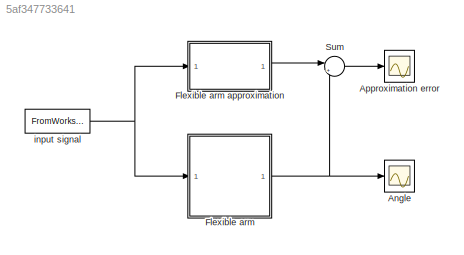
MODEL slx_5af347733641
KIND model
CONFIG AbsTol = auto
CONFIG EnableMultiTasking = off
CONFIG FixedStep = Ts
CONFIG InitFcn = if(~exist('bsol'))\n   init\nend
CONFIG MaxStep = auto
CONFIG MinStep = auto
CONFIG RelTol = 1e-3
CONFIG SampleTimeConstraint = Unconstrained
CONFIG Solver = FixedStepAuto
CONFIG SolverName = FixedStepAuto
CONFIG StartTime = 0.0
CONFIG StopFcn = evaluate
CONFIG StopTime = Tf
BLOCK [Scope] Angle
  NumInputPorts = 1
  Ports = [1]
  ScopeSpecificationString = Simulink.scopes.TimeScopeBlockCfg('CurrentConfiguration', extmgr.ConfigurationSet(extmgr.Configuration('Core','General UI',true),extmgr.Configuration('Core','Source UI',true),extmgr.Configuration('Sources','WiredSimulink',true,'DataLoggingSaveFormat','StructureWithTime','DataLoggingDecimation','1','DataLoggingDecimateData',true,'DataLogging',true,'DataLoggingVariableName','theta_data'),extmgr.Conf...<+1541ch>
BLOCK [Scope] Approximation error
  NumInputPorts = 1
  Ports = [1]
  ScopeSpecificationString = Simulink.scopes.TimeScopeBlockCfg('CurrentConfiguration', extmgr.ConfigurationSet(extmgr.Configuration('Core','General UI',true),extmgr.Configuration('Core','Source UI',true),extmgr.Configuration('Sources','WiredSimulink',true,'DataLoggingSaveFormat','StructureWithTime','DataLoggingDecimation','1','DataLoggingDecimateData',true,'DataLogging',true,'DataLoggingVariableName','error_data'),extmgr.Conf...<+1554ch>
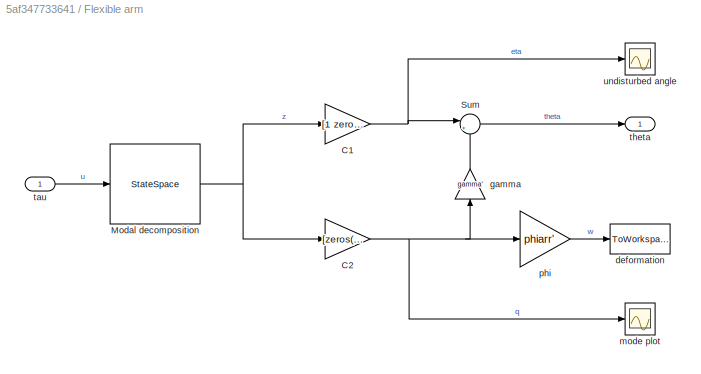
BLOCK [SubSystem] Flexible arm
  Ports = [1, 1]
  RequestExecContextInheritance = off
  Variant = off
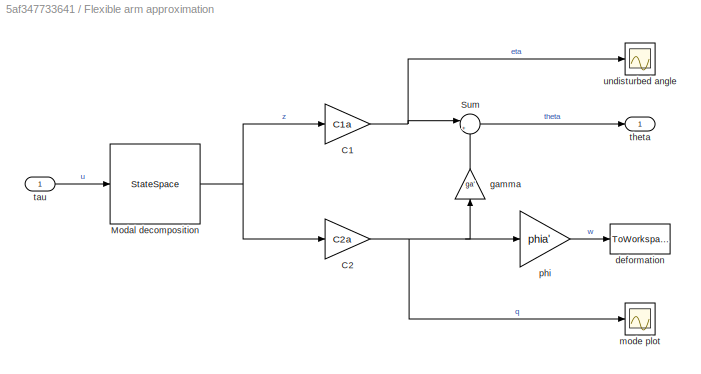
BLOCK [SubSystem] Flexible arm approximation
  Ports = [1, 1]
  RequestExecContextInheritance = off
  Variant = off
BLOCK [Gain] Flexible arm approximation/C1
  Gain = C1a
  Multiplication = Matrix(K*u) (u vector)
  OutDataTypeStr = Inherit: Inherit via internal rule
  ParamDataTypeStr = Inherit: Inherit via internal rule
  SaturateOnIntegerOverflow = off
BLOCK [Gain] Flexible arm approximation/C2
  Gain = C2a
  Multiplication = Matrix(K*u) (u vector)
  OutDataTypeStr = Inherit: Inherit via internal rule
  ParamDataTypeStr = Inherit: Inherit via internal rule
  SaturateOnIntegerOverflow = off
BLOCK [StateSpace] Flexible arm approximation/Modal decomposition
  A = Aa
  B = Ba
  C = eye(2*(Na+1))
  D = zeros(2*(Na+1),1)
  Ports = [1, 1]
  X0 = z0a
BLOCK [Sum] Flexible arm approximation/Sum
  IconShape = round
  InputSameDT = off
  Inputs = |++
  OutDataTypeStr = Inherit: Inherit via internal rule
  Ports = [2, 1]
  SaturateOnIntegerOverflow = off
BLOCK [ToWorkspace] Flexible arm approximation/deformation
  FixptAsFi = on
  MaxDataPoints = inf
  Ports = [1]
  SampleTime = -1
  Save2DSignal = 3-D array (concatenate along third dimension)
  SaveFormat = Structure With Time
  VariableName = approx_deform_data
BLOCK [Gain] Flexible arm approximation/gamma
  Gain = ga'
  Multiplication = Matrix(K*u)
  OutDataTypeStr = Inherit: Inherit via internal rule
  ParamDataTypeStr = Inherit: Inherit via internal rule
  SaturateOnIntegerOverflow = off
BLOCK [Scope] Flexible arm approximation/mode plot
  NumInputPorts = 1
  Ports = [1]
  ScopeSpecificationString = Simulink.scopes.TimeScopeBlockCfg('CurrentConfiguration', extmgr.ConfigurationSet(extmgr.Configuration('Core','General UI',true),extmgr.Configuration('Core','Source UI',true),extmgr.Configuration('Sources','WiredSimulink',true,'DataLoggingSaveFormat','StructureWithTime','DataLoggingDecimation','1','DataLoggingDecimateData',true,'DataLoggingVariableName','mode_data'),extmgr.Configuration('Visuals',...<+1562ch>
BLOCK [Gain] Flexible arm approximation/phi
  Gain = phia'
  Multiplication = Matrix(K*u)
  OutDataTypeStr = Inherit: Inherit via internal rule
  ParamDataTypeStr = Inherit: Inherit via internal rule
  SaturateOnIntegerOverflow = off
BLOCK [Inport] Flexible arm approximation/tau
  IconDisplay = Port number
BLOCK [Outport] Flexible arm approximation/theta
  IconDisplay = Port number
BLOCK [Scope] Flexible arm approximation/undisturbed angle
  NumInputPorts = 1
  Ports = [1]
  ScopeSpecificationString = Simulink.scopes.TimeScopeBlockCfg('CurrentConfiguration', extmgr.ConfigurationSet(extmgr.Configuration('Core','General UI',true),extmgr.Configuration('Core','Source UI',true),extmgr.Configuration('Sources','WiredSimulink',true,'DataLoggingSaveFormat','StructureWithTime','DataLoggingDecimation','1','DataLoggingDecimateData',true,'DataLoggingVariableName','eta_data'),extmgr.Configuration('Visuals','...<+1517ch>
BLOCK [Gain] Flexible arm/C1
  Gain = [1 zeros(1,2*N+1)]
  Multiplication = Matrix(K*u) (u vector)
  OutDataTypeStr = Inherit: Inherit via internal rule
  ParamDataTypeStr = Inherit: Inherit via internal rule
  SaturateOnIntegerOverflow = off
BLOCK [Gain] Flexible arm/C2
  Gain = [zeros(N,2) kron(eye(N),[1 0])]
  Multiplication = Matrix(K*u) (u vector)
  OutDataTypeStr = Inherit: Inherit via internal rule
  ParamDataTypeStr = Inherit: Inherit via internal rule
  SaturateOnIntegerOverflow = off
BLOCK [StateSpace] Flexible arm/Modal decomposition
  A = A
  B = B
  C = eye(2*(N+1))
  D = zeros(2*(N+1),1)
  Ports = [1, 1]
  X0 = z0
BLOCK [Sum] Flexible arm/Sum
  IconShape = round
  InputSameDT = off
  Inputs = |++
  OutDataTypeStr = Inherit: Inherit via internal rule
  Ports = [2, 1]
  SaturateOnIntegerOverflow = off
BLOCK [ToWorkspace] Flexible arm/deformation
  FixptAsFi = on
  MaxDataPoints = inf
  Ports = [1]
  SampleTime = -1
  Save2DSignal = 3-D array (concatenate along third dimension)
  SaveFormat = Structure With Time
  VariableName = deform_data
BLOCK [Gain] Flexible arm/gamma
  Gain = gamma'
  Multiplication = Matrix(K*u)
  OutDataTypeStr = Inherit: Inherit via internal rule
  ParamDataTypeStr = Inherit: Inherit via internal rule
  SaturateOnIntegerOverflow = off
BLOCK [Scope] Flexible arm/mode plot
  NumInputPorts = 1
  Ports = [1]
  ScopeSpecificationString = Simulink.scopes.TimeScopeBlockCfg('CurrentConfiguration', extmgr.ConfigurationSet(extmgr.Configuration('Core','General UI',true),extmgr.Configuration('Core','Source UI',true),extmgr.Configuration('Sources','WiredSimulink',true,'DataLoggingSaveFormat','StructureWithTime','DataLoggingDecimation','1','DataLoggingDecimateData',true,'DataLoggingVariableName','mode_data','DataLogging',true),extmgr.Confi...<+1631ch>
BLOCK [Gain] Flexible arm/phi
  Gain = phiarr'
  Multiplication = Matrix(K*u)
  OutDataTypeStr = Inherit: Inherit via internal rule
  ParamDataTypeStr = Inherit: Inherit via internal rule
  SaturateOnIntegerOverflow = off
BLOCK [Inport] Flexible arm/tau
  IconDisplay = Port number
BLOCK [Outport] Flexible arm/theta
  IconDisplay = Port number
BLOCK [Scope] Flexible arm/undisturbed angle
  NumInputPorts = 1
  Ports = [1]
  ScopeSpecificationString = Simulink.scopes.TimeScopeBlockCfg('CurrentConfiguration', extmgr.ConfigurationSet(extmgr.Configuration('Core','General UI',true),extmgr.Configuration('Core','Source UI',true),extmgr.Configuration('Sources','WiredSimulink',true,'DataLoggingSaveFormat','StructureWithTime','DataLoggingDecimation','1','DataLoggingDecimateData',true,'DataLoggingVariableName','eta_data','DataLogging',true),extmgr.Config...<+1536ch>
BLOCK [Sum] Sum
  IconShape = round
  InputSameDT = off
  Inputs = |+-
  OutDataTypeStr = Inherit: Inherit via internal rule
  Ports = [2, 1]
  SaturateOnIntegerOverflow = off
BLOCK [FromWorkspace] input signal
  SampleTime = 0
  VariableName = input_data
  ZeroCross = on
NET Flexible arm approximation/C1:1 -> Flexible arm approximation/Sum:1, Flexible arm approximation/undisturbed angle:1
NET Flexible arm approximation/C2:1 -> Flexible arm approximation/gamma:1, Flexible arm approximation/mode plot:1, Flexible arm approximation/phi:1
NET Flexible arm approximation/Modal decomposition:1 -> Flexible arm approximation/C1:1, Flexible arm approximation/C2:1
LINE Flexible arm approximation/Sum:1 -> Flexible arm approximation/theta:1
LINE Flexible arm approximation/gamma:1 -> Flexible arm approximation/Sum:2
LINE Flexible arm approximation/phi:1 -> Flexible arm approximation/deformation:1
LINE Flexible arm approximation/tau:1 -> Flexible arm approximation/Modal decomposition:1
LINE Flexible arm approximation:1 -> Sum:1
NET Flexible arm/C1:1 -> Flexible arm/Sum:1, Flexible arm/undisturbed angle:1
NET Flexible arm/C2:1 -> Flexible arm/gamma:1, Flexible arm/mode plot:1, Flexible arm/phi:1
NET Flexible arm/Modal decomposition:1 -> Flexible arm/C1:1, Flexible arm/C2:1
LINE Flexible arm/Sum:1 -> Flexible arm/theta:1
LINE Flexible arm/gamma:1 -> Flexible arm/Sum:2
LINE Flexible arm/phi:1 -> Flexible arm/deformation:1
LINE Flexible arm/tau:1 -> Flexible arm/Modal decomposition:1
NET Flexible arm:1 -> Angle:1, Sum:2
LINE Sum:1 -> Approximation error:1
NET input signal:1 -> Flexible arm approximation:1, Flexible arm:1
note: NET lines group one-source signal fan-out (src -> all destinations, sorted); 1:1 wires keep LINE
